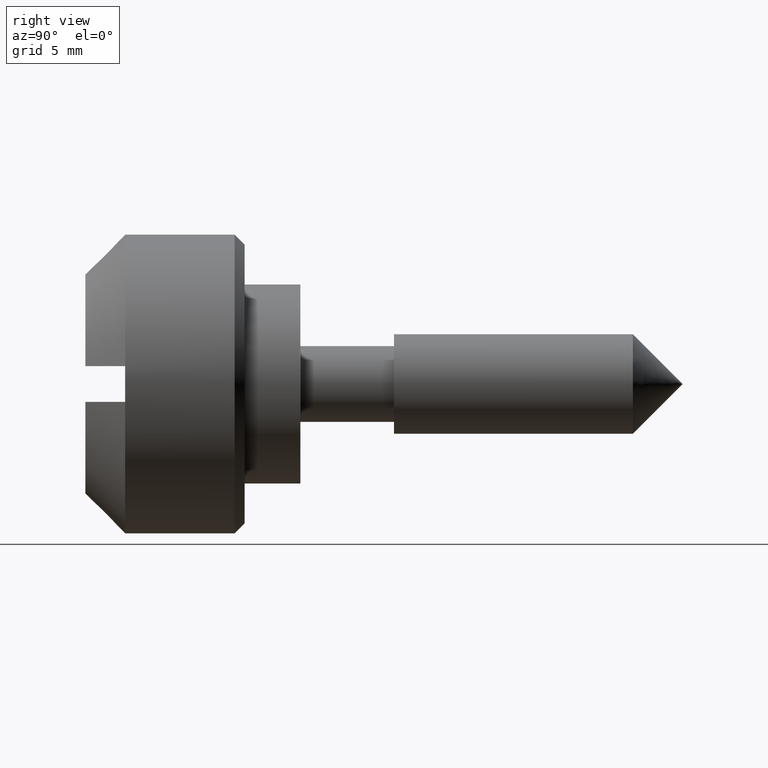
[diagram: clean part render]
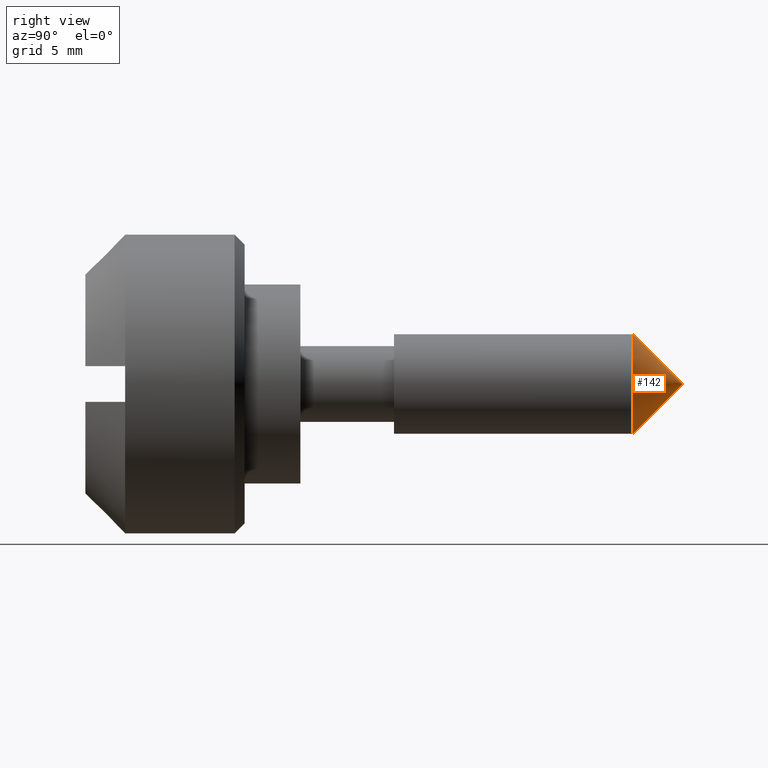
[diagram: same view with one face highlighted and labeled with its STEP entity id]
A machine part, right view. The second image highlights one B-rep face of the part: STEP entity #142.
In plain terms, the highlighted face is a freeform B-spline surface patch.
Its self-contained STEP definition (entity closure, byte-faithful):
#142=ADVANCED_FACE('',(#460),#459,.T.);
#459=( BOUNDED_SURFACE() B_SPLINE_SURFACE( 2,1,((#746,#747),(#748,#749),(#750,#751),(#752,#753),(#754,#755)), .UNSPECIFIED.,.F.,.F.,.F.) B_SPLINE_SURFACE_WITH_KNOTS((3,2,3),(2,2),(0.00000000000E+00,5.00000000000E-01,1.00000000000E+00),(0.00000000000E+00,1.00000000000E+00), .UNSPECIFIED. ) GEOMETRIC_REPRESENTATION_ITEM() RATIONAL_B_SPLINE_SURFACE(((1.00000000000E+00,1.00000000000E+00),(7.07106781187E-01,7.07106781187E-01),(1.00000000000E+00,1.00000000000E+00),(7.07106781187E-01,7.07106781187E-01),(1.00000000000E+00,1.00000000000E+00))) REPRESENTATION_ITEM('') SURFACE() );
#460=FACE_OUTER_BOUND('',#756,.T.);
#746=CARTESIAN_POINT('',(2.00000000000E+01,0.00000000000E+00,0.00000000000E+00));
#747=CARTESIAN_POINT('',(1.75000000000E+01,-6.12323399574E-16,-2.50000000000E+00));
#748=CARTESIAN_POINT('',(2.00000000000E+01,0.00000000000E+00,0.00000000000E+00));
#749=CARTESIAN_POINT('',(1.75000000000E+01,-2.50000000000E+00,-2.50000000000E+00));
#750=CARTESIAN_POINT('',(2.00000000000E+01,0.00000000000E+00,0.00000000000E+00));
#751=CARTESIAN_POINT('',(1.75000000000E+01,-2.50000000000E+00,4.59242549680E-16));
#752=CARTESIAN_POINT('',(2.00000000000E+01,0.00000000000E+00,0.00000000000E+00));
#753=CARTESIAN_POINT('',(1.75000000000E+01,-2.50000000000E+00,2.50000000000E+00));
#754=CARTESIAN_POINT('',(2.00000000000E+01,0.00000000000E+00,0.00000000000E+00));
#755=CARTESIAN_POINT('',(1.75000000000E+01,3.06161699787E-16,2.50000000000E+00));
#756=EDGE_LOOP('',(#976,#977,#978));
#976=ORIENTED_EDGE('',*,*,#1108,.F.);
#977=ORIENTED_EDGE('',*,*,#1109,.F.);
#978=ORIENTED_EDGE('',*,*,#1110,.T.);
#1108=EDGE_CURVE('',#1674,#1675,#1676,.T.);
#1109=EDGE_CURVE('',#1682,#1674,#1683,.T.);
#1110=EDGE_CURVE('',#1682,#1675,#1689,.T.);
#1674=VERTEX_POINT('',#2121);
#1675=VERTEX_POINT('',#2122);
#1676=CIRCLE('',#2126,2.50000000000E+00);
#1682=VERTEX_POINT('',#2127);
#1683=(BOUNDED_CURVE() B_SPLINE_CURVE(1,(#2128,#2129),.UNSPECIFIED.,.F.,.F.) B_SPLINE_CURVE_WITH_KNOTS((2,2),(0.00000000000E+00,1.00000000000E+00),.UNSPECIFIED.) CURVE() GEOMETRIC_REPRESENTATION_ITEM() RATIONAL_B_SPLINE_CURVE((1.00000000000E+00,1.00000000000E+00)) REPRESENTATION_ITEM('') );
#1689=(BOUNDED_CURVE() B_SPLINE_CURVE(1,(#2130,#2131),.UNSPECIFIED.,.F.,.F.) B_SPLINE_CURVE_WITH_KNOTS((2,2),(0.00000000000E+00,1.00000000000E+00),.UNSPECIFIED.) CURVE() GEOMETRIC_REPRESENTATION_ITEM() RATIONAL_B_SPLINE_CURVE((7.50000000000E-01,7.50000000000E-01)) REPRESENTATION_ITEM('') );
#2121=CARTESIAN_POINT('',(1.75000000000E+01,1.48029736617E-16,-2.50000000000E+00));
#2122=CARTESIAN_POINT('',(1.75000000000E+01,0.00000000000E+00,2.50000000000E+00));
#2123=CARTESIAN_POINT('',(1.75000000000E+01,0.00000000000E+00,0.00000000000E+00));
#2124=DIRECTION('',(-1.00000000000E+00,0.00000000000E+00,0.00000000000E+00));
#2125=DIRECTION('',(0.00000000000E+00,-1.22460635382E-16,1.00000000000E+00));
#2126=AXIS2_PLACEMENT_3D('',#2123,#2124,#2125);
#2127=CARTESIAN_POINT('',(2.00000000000E+01,0.00000000000E+00,0.00000000000E+00));
#2128=CARTESIAN_POINT('',(2.00000000000E+01,0.00000000000E+00,0.00000000000E+00));
#2129=CARTESIAN_POINT('',(1.75000000000E+01,-6.12303176911E-16,-2.50000000000E+00));
#2130=CARTESIAN_POINT('',(2.00000000000E+01,0.00000000000E+00,0.00000000000E+00));
#2131=CARTESIAN_POINT('',(1.75000000000E+01,7.40148683083E-16,2.50000000000E+00));